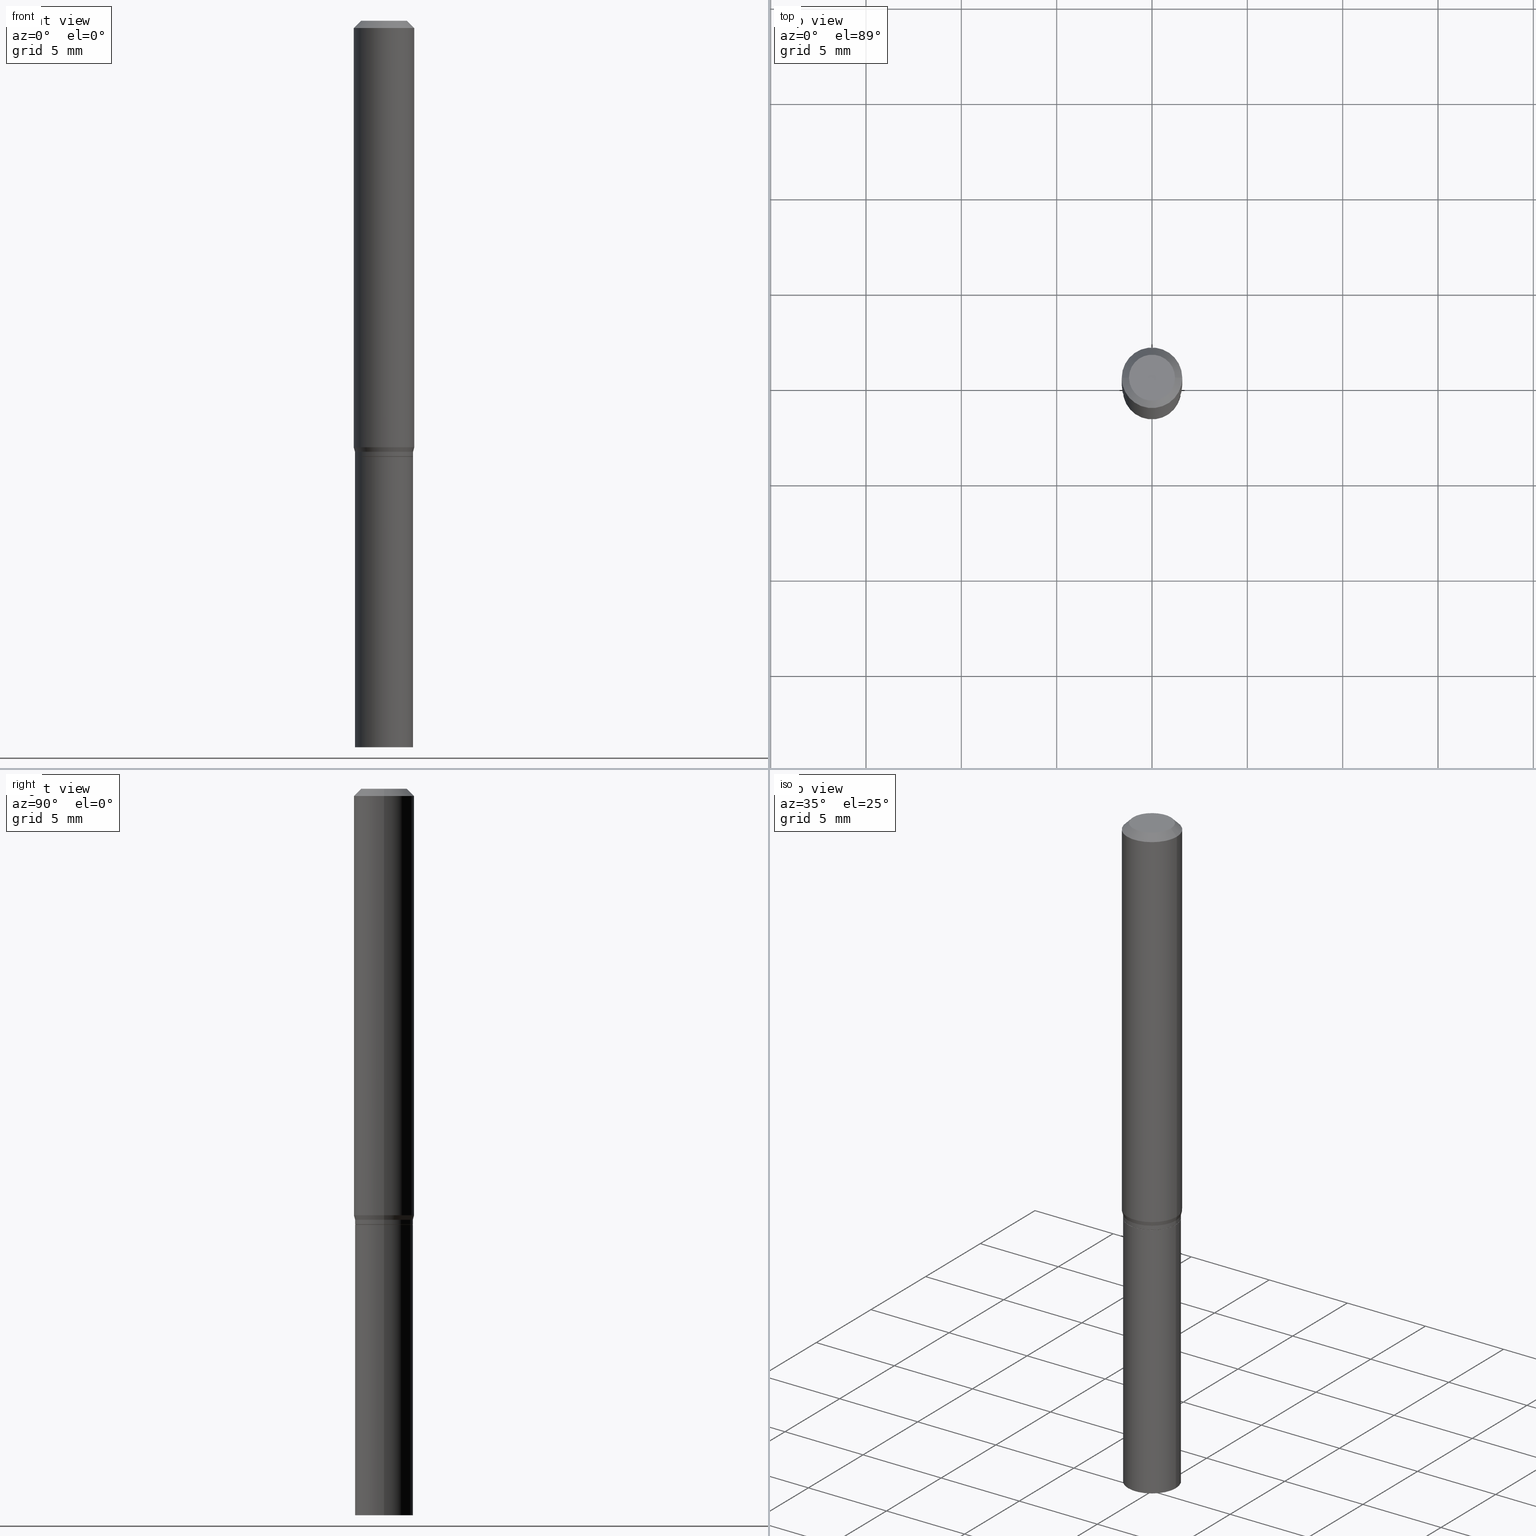
[diagram: canonical four-view strip — front | top / right | iso, engineering-drawing reading convention]
A machine part, canonical four-view strip (front | top / right | iso — engineering-drawing reading convention). The complete STEP part file that produces these views, byte-faithful:
ISO-10303-21;
HEADER;
FILE_DESCRIPTION (( 'STEP AP203' ),
    '1' );
FILE_NAME ('04209.STEP',
    '2024-03-14T17:19:39',
    ( '' ),
    ( '' ),
    'SwSTEP 2.0',
    'SolidWorks 2023',
    '' );
FILE_SCHEMA (( 'CONFIG_CONTROL_DESIGN' ));
ENDSEC;

DATA;
#1 = VECTOR ( 'NONE', #53, 39.37007874015748143 ) ;
#2 = FACE_OUTER_BOUND ( 'NONE', #115, .T. ) ;
#3 = ORIENTED_EDGE ( 'NONE', *, *, #406, .F. ) ;
#4 = DIRECTION ( 'NONE',  ( -2.445468806185136597E-29, 3.491481338843145583E-15, 1.000000000000000000 ) ) ;
#5 = VERTEX_POINT ( 'NONE', #450 ) ;
#6 = EDGE_CURVE ( 'NONE', #359, #5, #65, .T. ) ;
#7 = COORDINATED_UNIVERSAL_TIME_OFFSET ( 5, 0, .BEHIND. ) ;
#8 = ORIENTED_EDGE ( 'NONE', *, *, #388, .T. ) ;
#9 = APPLICATION_CONTEXT ( 'configuration controlled 3d designs of mechanical parts and assemblies' ) ;
#10 = PERSON_AND_ORGANIZATION ( #160, #280 ) ;
#11 = AXIS2_PLACEMENT_3D ( 'NONE', #188, #299, #198 ) ;
#12 = DIRECTION ( 'NONE',  ( 1.000000000000000000, -6.982962677686268288E-15, 0.000000000000000000 ) ) ;
#13 = DATE_TIME_ROLE ( 'classification_date' ) ;
#14 = DIRECTION ( 'NONE',  ( 1.000000000000000000, -6.982962677686270655E-15, 0.000000000000000000 ) ) ;
#15 = ADVANCED_FACE ( 'NONE', ( #92 ), #16, .F. ) ;
#16 = PLANE ( 'NONE',  #410 ) ;
#17 = PERSON_AND_ORGANIZATION_ROLE ( 'design_owner' ) ;
#18 = CONICAL_SURFACE ( 'NONE', #219, 0.06250000000000000000, 0.7853981633974549403 ) ;
#19 = VERTEX_POINT ( 'NONE', #88 ) ;
#20 = AXIS2_PLACEMENT_3D ( 'NONE', #245, #282, #210 ) ;
#21 = VERTEX_POINT ( 'NONE', #337 ) ;
#22 = EDGE_CURVE ( 'NONE', #263, #113, #366, .T. ) ;
#23 = DIRECTION ( 'NONE',  ( -2.445468806185136597E-29, 3.491481338843145583E-15, 1.000000000000000000 ) ) ;
#24 = DIRECTION ( 'NONE',  ( 1.000000000000000000, -6.982962677686269077E-15, 0.000000000000000000 ) ) ;
#25 = VECTOR ( 'NONE', #125, 39.37007874015748143 ) ;
#26 = AXIS2_PLACEMENT_3D ( 'NONE', #184, #134, #81 ) ;
#27 = CYLINDRICAL_SURFACE ( 'NONE', #56, 0.06000000000000012962 ) ;
#28 = ADVANCED_FACE ( 'NONE', ( #374 ), #196, .F. ) ;
#29 = ORIENTED_EDGE ( 'NONE', *, *, #77, .F. ) ;
#30 = DIRECTION ( 'NONE',  ( 2.438088387897960049E-29, -3.491481338843145188E-15, -1.000000000000000000 ) ) ;
#31 = CARTESIAN_POINT ( 'NONE',  ( -0.06250000000000000000, -2.630753217344736608E-15, -0.8806698729810786830 ) ) ;
#32 = CC_DESIGN_APPROVAL ( #412, ( #301 ) ) ;
#33 = LINE ( 'NONE', #286, #315 ) ;
#34 = ORIENTED_EDGE ( 'NONE', *, *, #304, .F. ) ;
#35 = UNCERTAINTY_MEASURE_WITH_UNIT (LENGTH_MEASURE( 1.000000000000000082E-05 ), #396, 'distance_accuracy_value', 'NONE');
#36 = ORIENTED_EDGE ( 'NONE', *, *, #406, .T. ) ;
#37 = DIRECTION ( 'NONE',  ( 1.000000000000000000, -6.982962677686268288E-15, 0.000000000000000000 ) ) ;
#38 = EDGE_LOOP ( 'NONE', ( #106, #73, #321, #179 ) ) ;
#39 = CONICAL_SURFACE ( 'NONE', #247, 0.06000000000000019901, 0.2617993877991505181 ) ;
#40 = APPROVAL_PERSON_ORGANIZATION ( #155, #258, #328 ) ;
#41 = DIRECTION ( 'NONE',  ( -2.445468806185136597E-29, 3.491481338843145583E-15, 1.000000000000000000 ) ) ;
#42 = EDGE_LOOP ( 'NONE', ( #214, #211, #222, #68 ) ) ;
#43 = ADVANCED_FACE ( 'NONE', ( #372 ), #39, .T. ) ;
#44 = CARTESIAN_POINT ( 'NONE',  ( 2.200921925566623666E-29, -3.142333204958831853E-15, -0.9000000000000002442 ) ) ;
#45 = ORIENTED_EDGE ( 'NONE', *, *, #168, .T. ) ;
#46 = COORDINATED_UNIVERSAL_TIME_OFFSET ( 5, 0, .BEHIND. ) ;
#47 = CARTESIAN_POINT ( 'NONE',  ( 0.06250000000000000000, -4.364351673553916694E-16, 3.047610484872459871E-30 ) ) ;
#48 = DIRECTION ( 'NONE',  ( 0.000000000000000000, 0.000000000000000000, 1.000000000000000000 ) ) ;
#49 = CIRCLE ( 'NONE', #269, 0.05949999999999999734 ) ;
#50 = ORIENTED_EDGE ( 'NONE', *, *, #277, .T. ) ;
#51 = PRODUCT_DEFINITION ( 'UNKNOWN', '', #140, #391 ) ;
#52 = APPROVAL_ROLE ( '' ) ;
#53 = DIRECTION ( 'NONE',  ( -0.2588190451025217942, 5.211531920934552619E-15, 0.9659258262890679791 ) ) ;
#54 = CARTESIAN_POINT ( 'NONE',  ( 2.153650702922254231E-29, -3.074842427194799224E-15, -0.8806698729810786830 ) ) ;
#55 = PERSON_AND_ORGANIZATION ( #160, #280 ) ;
#56 = AXIS2_PLACEMENT_3D ( 'NONE', #244, #421, #202 ) ;
#57 = DIRECTION ( 'NONE',  ( 2.438088387897960049E-29, -3.491481338843145188E-15, -1.000000000000000000 ) ) ;
#58 = AXIS2_PLACEMENT_3D ( 'NONE', #203, #452, #127 ) ;
#59 = EDGE_CURVE ( 'NONE', #263, #19, #235, .T. ) ;
#60 = DIRECTION ( 'NONE',  ( -2.445468806185136597E-29, 3.491481338843145583E-15, 1.000000000000000000 ) ) ;
#61 = LINE ( 'NONE', #422, #411 ) ;
#62 = CC_DESIGN_PERSON_AND_ORGANIZATION_ASSIGNMENT ( #271, #416, ( #140 ) ) ;
#63 = EDGE_CURVE ( 'NONE', #19, #266, #193, .T. ) ;
#64 = DIRECTION ( 'NONE',  ( -2.445468806185136597E-29, 3.491481338843145583E-15, 1.000000000000000000 ) ) ;
#65 = CIRCLE ( 'NONE', #384, 0.05999999999999999778 ) ;
#66 = VECTOR ( 'NONE', #114, 39.37007874015748143 ) ;
#67 = CARTESIAN_POINT ( 'NONE',  ( 3.668203209277705088E-31, -5.237222008264718399E-17, -0.01499999999999999944 ) ) ;
#68 = ORIENTED_EDGE ( 'NONE', *, *, #388, .F. ) ;
#69 = CARTESIAN_POINT ( 'NONE',  ( 0.000000000000000000, 0.000000000000000000, 0.000000000000000000 ) ) ;
#70 = CARTESIAN_POINT ( 'NONE',  ( -0.06000000000000006023, -2.714261822833349464E-15, -0.8995000000000001883 ) ) ;
#71 = ORIENTED_EDGE ( 'NONE', *, *, #351, .F. ) ;
#72 = CONICAL_SURFACE ( 'NONE', #300, 0.06250000000000000000, 0.7853981633974549403 ) ;
#73 = ORIENTED_EDGE ( 'NONE', *, *, #22, .T. ) ;
#74 = CARTESIAN_POINT ( 'NONE',  ( 2.176467237504771560E-29, -3.107418391570399809E-15, -0.8900000000000000133 ) ) ;
#75 = ORIENTED_EDGE ( 'NONE', *, *, #104, .F. ) ;
#76 = LINE ( 'NONE', #172, #101 ) ;
#77 = EDGE_CURVE ( 'NONE', #145, #365, #180, .T. ) ;
#78 = ORIENTED_EDGE ( 'NONE', *, *, #358, .F. ) ;
#79 = VECTOR ( 'NONE', #408, 39.37007874015748143 ) ;
#80 = LOCAL_TIME ( 13, 19, 39.00000000000000000, #83 ) ;
#81 = DIRECTION ( 'NONE',  ( 1.000000000000000000, -6.982962677686268288E-15, 0.000000000000000000 ) ) ;
#82 = EDGE_LOOP ( 'NONE', ( #3, #166 ) ) ;
#83 = COORDINATED_UNIVERSAL_TIME_OFFSET ( 5, 0, .BEHIND. ) ;
#84 = LINE ( 'NONE', #90, #1 ) ;
#85 = APPROVAL_DATE_TIME ( #265, #457 ) ;
#86 = CARTESIAN_POINT ( 'NONE',  ( -0.06250000000000000000, -1.119518113788660733E-15, -0.01499999999999999944 ) ) ;
#87 = AXIS2_PLACEMENT_3D ( 'NONE', #227, #151, #297 ) ;
#88 = CARTESIAN_POINT ( 'NONE',  ( 0.06250000000000000000, -3.511277594550191288E-15, -0.8806698729810786830 ) ) ;
#89 = PERSON_AND_ORGANIZATION ( #160, #280 ) ;
#90 = CARTESIAN_POINT ( 'NONE',  ( -0.06000000000000019901, -2.681092750114338136E-15, -0.8900000000000000133 ) ) ;
#91 = SECURITY_CLASSIFICATION_LEVEL ( 'unclassified' ) ;
#92 = FACE_OUTER_BOUND ( 'NONE', #142, .T. ) ;
#93 = EDGE_CURVE ( 'NONE', #359, #21, #377, .T. ) ;
#94 = CLOSED_SHELL ( 'NONE', ( #340, #413, #325, #15 ) ) ;
#95 = LINE ( 'NONE', #316, #242 ) ;
#96 = DIRECTION ( 'NONE',  ( -2.445468806185136597E-29, 3.491481338843145583E-15, 1.000000000000000000 ) ) ;
#97 = CC_DESIGN_DATE_AND_TIME_ASSIGNMENT ( #116, #13, ( #301 ) ) ;
#98 = EDGE_CURVE ( 'NONE', #19, #263, #453, .T. ) ;
#99 = DIRECTION ( 'NONE',  ( 0.7071067811865656694, -2.468850131082446387E-15, 0.7071067811865294761 ) ) ;
#100 = CARTESIAN_POINT ( 'NONE',  ( 0.06000000000000012962, -4.189777606611768802E-16, 2.925706065477567711E-30 ) ) ;
#101 = VECTOR ( 'NONE', #318, 39.37007874015748143 ) ;
#102 = DIRECTION ( 'NONE',  ( -2.445468806185136877E-29, 3.491481338843145188E-15, 1.000000000000000000 ) ) ;
#103 = PLANE ( 'NONE',  #20 ) ;
#104 = EDGE_CURVE ( 'NONE', #218, #263, #84, .T. ) ;
#105 = DIRECTION ( 'NONE',  ( 1.000000000000000000, -6.982962677686268288E-15, 0.000000000000000000 ) ) ;
#106 = ORIENTED_EDGE ( 'NONE', *, *, #98, .T. ) ;
#107 = CONICAL_SURFACE ( 'NONE', #87, 0.05949999999999999734, 0.7853981633974739252 ) ;
#108 = CARTESIAN_POINT ( 'NONE',  ( 3.668203209277704895E-29, -5.237222008264718177E-15, -1.500000000000000222 ) ) ;
#109 = VERTEX_POINT ( 'NONE', #305 ) ;
#110 = ADVANCED_FACE ( 'NONE', ( #451 ), #18, .T. ) ;
#111 = DIRECTION ( 'NONE',  ( -2.445468806185136597E-29, 3.491481338843145583E-15, 1.000000000000000000 ) ) ;
#112 = CC_DESIGN_DATE_AND_TIME_ASSIGNMENT ( #446, #442, ( #51 ) ) ;
#113 = VERTEX_POINT ( 'NONE', #86 ) ;
#114 = DIRECTION ( 'NONE',  ( 0.7071067811865522357, -7.319954787623271823E-15, -0.7071067811865427988 ) ) ;
#115 = EDGE_LOOP ( 'NONE', ( #36, #118, #294, #403 ) ) ;
#116 = DATE_AND_TIME ( #291, #249 ) ;
#117 = ORIENTED_EDGE ( 'NONE', *, *, #439, .F. ) ;
#118 = ORIENTED_EDGE ( 'NONE', *, *, #93, .T. ) ;
#119 = COORDINATED_UNIVERSAL_TIME_OFFSET ( 5, 0, .BEHIND. ) ;
#120 = DIRECTION ( 'NONE',  ( 1.000000000000000000, -6.982962677686270655E-15, 0.000000000000000000 ) ) ;
#121 = CYLINDRICAL_SURFACE ( 'NONE', #461, 0.06000000000000012962 ) ;
#122 = CC_DESIGN_APPROVAL ( #258, ( #51 ) ) ;
#123 = CARTESIAN_POINT ( 'NONE',  ( 3.668203209277704895E-29, -5.237222008264718177E-15, -1.500000000000000222 ) ) ;
#124 = ADVANCED_FACE ( 'NONE', ( #268 ), #107, .T. ) ;
#125 = DIRECTION ( 'NONE',  ( -2.445468806185136877E-29, 3.491481338843145188E-15, 1.000000000000000000 ) ) ;
#126 = DIRECTION ( 'NONE',  ( 1.000000000000000000, -6.982962677686269077E-15, 0.000000000000000000 ) ) ;
#127 = DIRECTION ( 'NONE',  ( 1.000000000000000000, -6.982962677686269077E-15, 0.000000000000000000 ) ) ;
#128 = VECTOR ( 'NONE', #254, 39.37007874015748143 ) ;
#129 = FACE_OUTER_BOUND ( 'NONE', #38, .T. ) ;
#130 = CARTESIAN_POINT ( 'NONE',  ( 3.668203209277705088E-31, -5.237222008264718399E-17, -0.01499999999999999944 ) ) ;
#131 = FACE_OUTER_BOUND ( 'NONE', #290, .T. ) ;
#132 = AXIS2_PLACEMENT_3D ( 'NONE', #237, #426, #24 ) ;
#133 = CC_DESIGN_PERSON_AND_ORGANIZATION_ASSIGNMENT ( #89, #17, ( #295 ) ) ;
#134 = DIRECTION ( 'NONE',  ( -2.445468806185136597E-29, 3.491481338843145583E-15, 1.000000000000000000 ) ) ;
#135 = CARTESIAN_POINT ( 'NONE',  ( -0.05999999999999999778, -3.763451965155715313E-15, -1.500000000000000222 ) ) ;
#136 = EDGE_LOOP ( 'NONE', ( #138, #443, #327, #137 ) ) ;
#137 = ORIENTED_EDGE ( 'NONE', *, *, #176, .F. ) ;
#138 = ORIENTED_EDGE ( 'NONE', *, *, #317, .F. ) ;
#139 = ADVANCED_FACE ( 'NONE', ( #444 ), #121, .T. ) ;
#140 = PRODUCT_DEFINITION_FORMATION_WITH_SPECIFIED_SOURCE ( 'ANY', '', #295, .NOT_KNOWN. ) ;
#141 = DIRECTION ( 'NONE',  ( -2.445468806185136597E-29, 3.491481338843145583E-15, 1.000000000000000000 ) ) ;
#142 = EDGE_LOOP ( 'NONE', ( #284, #173 ) ) ;
#143 = DIRECTION ( 'NONE',  ( 1.000000000000000000, -6.982962677686268288E-15, 0.000000000000000000 ) ) ;
#144 = EDGE_LOOP ( 'NONE', ( #329, #147, #45, #34 ) ) ;
#145 = VERTEX_POINT ( 'NONE', #348 ) ;
#146 = PERSON_AND_ORGANIZATION_ROLE ( 'classification_officer' ) ;
#147 = ORIENTED_EDGE ( 'NONE', *, *, #6, .T. ) ;
#148 = AXIS2_PLACEMENT_3D ( 'NONE', #157, #335, #447 ) ;
#149 = APPROVAL_ROLE ( '' ) ;
#150 = DIRECTION ( 'NONE',  ( -1.000000000000000000, 6.982962677686266711E-15, 0.000000000000000000 ) ) ;
#151 = DIRECTION ( 'NONE',  ( -2.445468806185136597E-29, 3.491481338843145583E-15, 1.000000000000000000 ) ) ;
#152 = APPLICATION_PROTOCOL_DEFINITION ( 'international standard', 'config_control_design', 1994, #9 ) ;
#153 = DIRECTION ( 'NONE',  ( -2.445468806185136597E-29, 3.491481338843145583E-15, 1.000000000000000000 ) ) ;
#154 = ADVANCED_FACE ( 'NONE', ( #243 ), #72, .T. ) ;
#155 = PERSON_AND_ORGANIZATION ( #160, #280 ) ;
#156 = CIRCLE ( 'NONE', #26, 0.05999999999999999778 ) ;
#157 = CARTESIAN_POINT ( 'NONE',  ( 2.199699191163530864E-29, -3.140587464289409955E-15, -0.8995000000000001883 ) ) ;
#158 = ORIENTED_EDGE ( 'NONE', *, *, #228, .T. ) ;
#159 = CARTESIAN_POINT ( 'NONE',  ( 2.153650702922254231E-29, -3.074842427194799224E-15, -0.8806698729810786830 ) ) ;
#160 = PERSON ( 'UNSPECIFIED', 'UNSPECIFIED', 'UNSPECIFIED', ('UNSPECIFIED'), ('UNSPECIFIED'), ('UNSPECIFIED') ) ;
#161 = CARTESIAN_POINT ( 'NONE',  ( 2.176467237504771560E-29, -3.107418391570399809E-15, -0.8900000000000000133 ) ) ;
#162 = DIRECTION ( 'NONE',  ( -2.445468806185136597E-29, 3.491481338843145583E-15, 1.000000000000000000 ) ) ;
#163 = MANIFOLD_SOLID_BREP ( 'Body-Move/Copy2[1]', #94 ) ;
#164 = MANIFOLD_SOLID_BREP ( 'Body-Move/Copy2[2]', #199 ) ;
#165 = DIRECTION ( 'NONE',  ( -2.445468806185136597E-29, 3.491481338843145583E-15, 1.000000000000000000 ) ) ;
#166 = ORIENTED_EDGE ( 'NONE', *, *, #6, .F. ) ;
#167 = DIRECTION ( 'NONE',  ( 1.000000000000000000, -6.982962677686266711E-15, 0.000000000000000000 ) ) ;
#168 = EDGE_CURVE ( 'NONE', #5, #332, #95, .T. ) ;
#169 = DIRECTION ( 'NONE',  ( -2.445468806185136877E-29, 3.491481338843145188E-15, 1.000000000000000000 ) ) ;
#170 = CIRCLE ( 'NONE', #274, 0.06250000000000000000 ) ;
#171 =( GEOMETRIC_REPRESENTATION_CONTEXT ( 3 ) GLOBAL_UNCERTAINTY_ASSIGNED_CONTEXT ( ( #35 ) ) GLOBAL_UNIT_ASSIGNED_CONTEXT ( ( #396, #261, #336 ) ) REPRESENTATION_CONTEXT ( 'NONE', 'WORKASPACE' ) );
#172 = CARTESIAN_POINT ( 'NONE',  ( -0.05949999999999999734, -2.719560277181572261E-15, -0.9000000000000002442 ) ) ;
#173 = ORIENTED_EDGE ( 'NONE', *, *, #304, .T. ) ;
#174 = DIRECTION ( 'NONE',  ( 1.000000000000000000, -6.982962677686266711E-15, 4.876176775795935793E-29 ) ) ;
#175 = CC_DESIGN_PERSON_AND_ORGANIZATION_ASSIGNMENT ( #376, #146, ( #301 ) ) ;
#176 = EDGE_CURVE ( 'NONE', #441, #113, #350, .T. ) ;
#177 = ORIENTED_EDGE ( 'NONE', *, *, #277, .F. ) ;
#178 = DIRECTION ( 'NONE',  ( -2.445468806185136597E-29, 3.491481338843145583E-15, 1.000000000000000000 ) ) ;
#179 = ORIENTED_EDGE ( 'NONE', *, *, #63, .F. ) ;
#180 = CIRCLE ( 'NONE', #148, 0.06000000000000006023 ) ;
#181 = AXIS2_PLACEMENT_3D ( 'NONE', #74, #436, #364 ) ;
#182 = DIRECTION ( 'NONE',  ( 1.000000000000000000, -6.982962677686267499E-15, 4.876176775795936353E-29 ) ) ;
#183 = ORIENTED_EDGE ( 'NONE', *, *, #208, .F. ) ;
#184 = CARTESIAN_POINT ( 'NONE',  ( 2.200921925566623666E-29, -3.142333204958831853E-15, -0.9000000000000002442 ) ) ;
#185 = ORIENTED_EDGE ( 'NONE', *, *, #186, .F. ) ;
#186 = EDGE_CURVE ( 'NONE', #365, #145, #438, .T. ) ;
#187 = PERSON_AND_ORGANIZATION ( #160, #280 ) ;
#188 = CARTESIAN_POINT ( 'NONE',  ( 2.200921925566623666E-29, -3.142333204958831853E-15, -0.9000000000000002442 ) ) ;
#189 = ORIENTED_EDGE ( 'NONE', *, *, #255, .T. ) ;
#190 = AXIS2_PLACEMENT_3D ( 'NONE', #69, #23, #460 ) ;
#191 = APPROVAL_PERSON_ORGANIZATION ( #55, #457, #52 ) ;
#192 = SHAPE_DEFINITION_REPRESENTATION ( #330, #240 ) ;
#193 = LINE ( 'NONE', #47, #79 ) ;
#194 = PERSON_AND_ORGANIZATION_ROLE ( 'creator' ) ;
#195 = PRODUCT_RELATED_PRODUCT_CATEGORY ( 'detail', '', ( #295 ) ) ;
#196 = PLANE ( 'NONE',  #11 ) ;
#197 = EDGE_CURVE ( 'NONE', #266, #113, #430, .T. ) ;
#198 = DIRECTION ( 'NONE',  ( 1.000000000000000000, -6.982962677686265922E-15, 4.876176775795935793E-29 ) ) ;
#199 = CLOSED_SHELL ( 'NONE', ( #139, #124, #110, #267, #288, #43, #425, #154, #241, #28, #458, #223 ) ) ;
#200 = AXIS2_PLACEMENT_3D ( 'NONE', #221, #141, #182 ) ;
#201 = CARTESIAN_POINT ( 'NONE',  ( -0.06250000000000000000, 4.440892098500626162E-16, -3.074334431409316114E-30 ) ) ;
#202 = DIRECTION ( 'NONE',  ( 1.000000000000000000, -6.982962677686265922E-15, 4.876176775795935793E-29 ) ) ;
#203 = CARTESIAN_POINT ( 'NONE',  ( 2.176467237504771560E-29, -3.107418391570399809E-15, -0.8900000000000000133 ) ) ;
#204 = AXIS2_PLACEMENT_3D ( 'NONE', #159, #417, #14 ) ;
#205 = DIRECTION ( 'NONE',  ( 1.000000000000000000, -6.982962677686267499E-15, 4.852736867747366768E-29 ) ) ;
#206 = CIRCLE ( 'NONE', #181, 0.06000000000000019901 ) ;
#207 = CARTESIAN_POINT ( 'NONE',  ( 4.865611903635008365E-45, -6.946804277620623666E-31, -1.989643822619527736E-16 ) ) ;
#208 = EDGE_CURVE ( 'NONE', #145, #264, #383, .T. ) ;
#209 = DIRECTION ( 'NONE',  ( -2.445468806185136597E-29, 3.491481338843145583E-15, 1.000000000000000000 ) ) ;
#210 = DIRECTION ( 'NONE',  ( 1.000000000000000000, -6.982962677686265922E-15, 4.876176775795935793E-29 ) ) ;
#211 = ORIENTED_EDGE ( 'NONE', *, *, #104, .T. ) ;
#212 = FACE_OUTER_BOUND ( 'NONE', #256, .T. ) ;
#213 = ORIENTED_EDGE ( 'NONE', *, *, #63, .T. ) ;
#214 = ORIENTED_EDGE ( 'NONE', *, *, #351, .T. ) ;
#215 = CARTESIAN_POINT ( 'NONE',  ( 0.06000000000000019901, -3.526396152231577232E-15, -0.8900000000000000133 ) ) ;
#216 = EDGE_LOOP ( 'NONE', ( #158, #437 ) ) ;
#217 = DIRECTION ( 'NONE',  ( 1.000000000000000000, -6.982962677686267499E-15, 4.876176775795936353E-29 ) ) ;
#218 = VERTEX_POINT ( 'NONE', #276 ) ;
#219 = AXIS2_PLACEMENT_3D ( 'NONE', #262, #405, #150 ) ;
#220 = CC_DESIGN_SECURITY_CLASSIFICATION ( #301, ( #140 ) ) ;
#221 = CARTESIAN_POINT ( 'NONE',  ( 0.000000000000000000, 0.000000000000000000, 0.000000000000000000 ) ) ;
#222 = ORIENTED_EDGE ( 'NONE', *, *, #98, .F. ) ;
#223 = ADVANCED_FACE ( 'NONE', ( #131 ), #27, .T. ) ;
#224 = APPLICATION_PROTOCOL_DEFINITION ( 'international standard', 'config_control_design', 1994, #293 ) ;
#225 = CARTESIAN_POINT ( 'NONE',  ( 4.189777606611979823E-16, 0.05999999999999686140, -0.9000000000000004663 ) ) ;
#226 = APPROVAL_DATE_TIME ( #334, #412 ) ;
#227 = CARTESIAN_POINT ( 'NONE',  ( 2.200921925566623666E-29, -3.142333204958831853E-15, -0.9000000000000002442 ) ) ;
#228 = EDGE_CURVE ( 'NONE', #441, #109, #314, .T. ) ;
#229 = PERSON_AND_ORGANIZATION ( #160, #280 ) ;
#230 = DIRECTION ( 'NONE',  ( -2.445468806185136597E-29, 3.491481338843145583E-15, 1.000000000000000000 ) ) ;
#231 = CALENDAR_DATE ( 2024, 14, 3 ) ;
#232 = CARTESIAN_POINT ( 'NONE',  ( 2.176467237504771560E-29, -3.107418391570399809E-15, -0.8900000000000000133 ) ) ;
#233 = PERSON_AND_ORGANIZATION_ROLE ( 'design_supplier' ) ;
#234 = DIRECTION ( 'NONE',  ( 1.000000000000000000, -6.982962677686269077E-15, 0.000000000000000000 ) ) ;
#235 = CIRCLE ( 'NONE', #352, 0.06250000000000000000 ) ;
#236 = LOCAL_TIME ( 13, 19, 39.00000000000000000, #119 ) ;
#237 = CARTESIAN_POINT ( 'NONE',  ( 2.199699191163530864E-29, -3.140587464289409955E-15, -0.8995000000000001883 ) ) ;
#238 = DIRECTION ( 'NONE',  ( -0.7071067811865522357, 2.468850131082306364E-15, -0.7071067811865427988 ) ) ;
#239 = CARTESIAN_POINT ( 'NONE',  ( 4.865611903635008365E-45, -6.946804277620623666E-31, -1.989643822619527736E-16 ) ) ;
#240 = ADVANCED_BREP_SHAPE_REPRESENTATION ( '04209', ( #163, #164, #440 ), #171 ) ;
#241 = ADVANCED_FACE ( 'NONE', ( #343 ), #278, .F. ) ;
#242 = VECTOR ( 'NONE', #102, 39.37007874015748143 ) ;
#243 = FACE_OUTER_BOUND ( 'NONE', #260, .T. ) ;
#244 = CARTESIAN_POINT ( 'NONE',  ( 0.000000000000000000, 0.000000000000000000, 0.000000000000000000 ) ) ;
#245 = CARTESIAN_POINT ( 'NONE',  ( 3.576687321579069994E-29, -5.368277968210015545E-15, -1.500000000000000222 ) ) ;
#246 = DIRECTION ( 'NONE',  ( 1.000000000000000000, -6.982962677686268288E-15, 0.000000000000000000 ) ) ;
#247 = AXIS2_PLACEMENT_3D ( 'NONE', #232, #153, #234 ) ;
#248 = ORIENTED_EDGE ( 'NONE', *, *, #395, .F. ) ;
#249 = LOCAL_TIME ( 13, 19, 39.00000000000000000, #331 ) ;
#250 = DIRECTION ( 'NONE',  ( -2.445468806185136597E-29, 3.491481338843145583E-15, 1.000000000000000000 ) ) ;
#251 = ORIENTED_EDGE ( 'NONE', *, *, #59, .T. ) ;
#252 = LINE ( 'NONE', #215, #128 ) ;
#253 = EDGE_LOOP ( 'NONE', ( #435, #292, #71, #183 ) ) ;
#254 = DIRECTION ( 'NONE',  ( 0.2588190451025217942, 1.565188264969618812E-15, 0.9659258262890679791 ) ) ;
#255 = EDGE_CURVE ( 'NONE', #113, #266, #170, .T. ) ;
#256 = EDGE_LOOP ( 'NONE', ( #283, #251, #213, #459 ) ) ;
#257 = AXIS2_PLACEMENT_3D ( 'NONE', #130, #60, #310 ) ;
#258 = APPROVAL ( #404, 'UNSPECIFIED' ) ;
#259 = CIRCLE ( 'NONE', #448, 0.04749999999999999362 ) ;
#260 = EDGE_LOOP ( 'NONE', ( #78, #429, #323, #189 ) ) ;
#261 =( NAMED_UNIT ( * ) PLANE_ANGLE_UNIT ( ) SI_UNIT ( $, .RADIAN. ) );
#262 = CARTESIAN_POINT ( 'NONE',  ( 3.668203209277705088E-31, -5.237222008264718399E-17, -0.01499999999999999944 ) ) ;
#263 = VERTEX_POINT ( 'NONE', #31 ) ;
#264 = VERTEX_POINT ( 'NONE', #455 ) ;
#265 = DATE_AND_TIME ( #449, #370 ) ;
#266 = VERTEX_POINT ( 'NONE', #313 ) ;
#267 = ADVANCED_FACE ( 'NONE', ( #129 ), #279, .T. ) ;
#268 = FACE_OUTER_BOUND ( 'NONE', #319, .T. ) ;
#269 = AXIS2_PLACEMENT_3D ( 'NONE', #44, #111, #246 ) ;
#270 = DIRECTION ( 'NONE',  ( -1.000000000000000000, 6.982962677686265922E-15, -4.876176775795935793E-29 ) ) ;
#271 = PERSON_AND_ORGANIZATION ( #160, #280 ) ;
#272 = DIRECTION ( 'NONE',  ( -2.445468806185136877E-29, 3.491481338843145188E-15, 1.000000000000000000 ) ) ;
#273 = CARTESIAN_POINT ( 'NONE',  ( -0.05949999999999999734, -2.716911050007460666E-15, -0.9000000000000002442 ) ) ;
#274 = AXIS2_PLACEMENT_3D ( 'NONE', #67, #162, #167 ) ;
#275 = CARTESIAN_POINT ( 'NONE',  ( 2.200921925566623666E-29, -3.142333204958831853E-15, -0.9000000000000002442 ) ) ;
#276 = CARTESIAN_POINT ( 'NONE',  ( -0.06000000000000019901, -2.655922983729537372E-15, -0.8900000000000000133 ) ) ;
#277 = EDGE_CURVE ( 'NONE', #218, #264, #392, .T. ) ;
#278 = PLANE ( 'NONE',  #346 ) ;
#279 = CYLINDRICAL_SURFACE ( 'NONE', #190, 0.06250000000000000000 ) ;
#280 = ORGANIZATION ( 'UNSPECIFIED', 'UNSPECIFIED', '' ) ;
#281 = FACE_OUTER_BOUND ( 'NONE', #82, .T. ) ;
#282 = DIRECTION ( 'NONE',  ( -2.438088387897960049E-29, 3.491481338843145188E-15, 1.000000000000000000 ) ) ;
#283 = ORIENTED_EDGE ( 'NONE', *, *, #22, .F. ) ;
#284 = ORIENTED_EDGE ( 'NONE', *, *, #344, .T. ) ;
#285 = CONICAL_SURFACE ( 'NONE', #385, 0.05949999999999999734, 0.7853981633974739252 ) ;
#286 = CARTESIAN_POINT ( 'NONE',  ( -0.06000000000000012962, 4.263256414560610325E-16, -2.951361054152949719E-30 ) ) ;
#287 = VERTEX_POINT ( 'NONE', #273 ) ;
#288 = ADVANCED_FACE ( 'NONE', ( #307 ), #309, .T. ) ;
#289 = CYLINDRICAL_SURFACE ( 'NONE', #341, 0.05999999999999999778 ) ;
#290 = EDGE_LOOP ( 'NONE', ( #394, #354, #390, #177 ) ) ;
#291 = CALENDAR_DATE ( 2024, 14, 3 ) ;
#292 = ORIENTED_EDGE ( 'NONE', *, *, #375, .T. ) ;
#293 = APPLICATION_CONTEXT ( 'configuration controlled 3d designs of mechanical parts and assemblies' ) ;
#294 = ORIENTED_EDGE ( 'NONE', *, *, #344, .F. ) ;
#295 = PRODUCT ( '04209', '04209', '', ( #414 ) ) ;
#296 = APPROVAL_STATUS ( 'not_yet_approved' ) ;
#297 = DIRECTION ( 'NONE',  ( 1.000000000000000000, -6.982962677686268288E-15, 0.000000000000000000 ) ) ;
#298 = APPROVAL_DATE_TIME ( #371, #258 ) ;
#299 = DIRECTION ( 'NONE',  ( -2.438088387897960049E-29, 3.491481338843145188E-15, 1.000000000000000000 ) ) ;
#300 = AXIS2_PLACEMENT_3D ( 'NONE', #456, #345, #380 ) ;
#301 = SECURITY_CLASSIFICATION ( '', '', #91 ) ;
#302 = APPROVAL_STATUS ( 'not_yet_approved' ) ;
#303 = EDGE_LOOP ( 'NONE', ( #397, #356, #402, #185 ) ) ;
#304 = EDGE_CURVE ( 'NONE', #21, #332, #333, .T. ) ;
#305 = CARTESIAN_POINT ( 'NONE',  ( 0.04749999999999999362, -4.035134999187581581E-16, -1.989643822619502098E-16 ) ) ;
#306 = DIMENSIONAL_EXPONENTS ( 1.000000000000000000, 0.000000000000000000, 0.000000000000000000, 0.000000000000000000, 0.000000000000000000, 0.000000000000000000, 0.000000000000000000 ) ;
#307 = FACE_OUTER_BOUND ( 'NONE', #42, .T. ) ;
#308 = VECTOR ( 'NONE', #169, 39.37007874015748143 ) ;
#309 = CONICAL_SURFACE ( 'NONE', #58, 0.06000000000000019901, 0.2617993877991505181 ) ;
#310 = DIRECTION ( 'NONE',  ( 1.000000000000000000, -6.982962677686266711E-15, 0.000000000000000000 ) ) ;
#311 = EDGE_CURVE ( 'NONE', #464, #145, #61, .T. ) ;
#312 = DIRECTION ( 'NONE',  ( -2.445468806185136597E-29, 3.491481338843145583E-15, 1.000000000000000000 ) ) ;
#313 = CARTESIAN_POINT ( 'NONE',  ( 0.06250000000000000000, -4.888073874380388472E-16, -0.01499999999999999944 ) ) ;
#314 = CIRCLE ( 'NONE', #378, 0.04749999999999999362 ) ;
#315 = VECTOR ( 'NONE', #326, 39.37007874015748143 ) ;
#316 = CARTESIAN_POINT ( 'NONE',  ( 0.05999999999999999778, -4.189777606611760421E-16, 2.925706065477561756E-30 ) ) ;
#317 = EDGE_CURVE ( 'NONE', #109, #441, #259, .T. ) ;
#318 = DIRECTION ( 'NONE',  ( -0.7071067811865656694, 7.493145998870420424E-15, 0.7071067811865294761 ) ) ;
#319 = EDGE_LOOP ( 'NONE', ( #362, #342, #29, #466 ) ) ;
#320 = CARTESIAN_POINT ( 'NONE',  ( 2.200921925566623666E-29, -3.142333204958831853E-15, -0.9000000000000002442 ) ) ;
#321 = ORIENTED_EDGE ( 'NONE', *, *, #197, .F. ) ;
#322 = FACE_OUTER_BOUND ( 'NONE', #144, .T. ) ;
#323 = ORIENTED_EDGE ( 'NONE', *, *, #176, .T. ) ;
#324 = AXIS2_PLACEMENT_3D ( 'NONE', #353, #250, #143 ) ;
#325 = ADVANCED_FACE ( 'NONE', ( #322 ), #289, .T. ) ;
#326 = DIRECTION ( 'NONE',  ( -2.445468806185136877E-29, 3.491481338843145188E-15, 1.000000000000000000 ) ) ;
#327 = ORIENTED_EDGE ( 'NONE', *, *, #197, .T. ) ;
#328 = APPROVAL_ROLE ( '' ) ;
#329 = ORIENTED_EDGE ( 'NONE', *, *, #93, .F. ) ;
#330 = PRODUCT_DEFINITION_SHAPE ( 'NONE', 'NONE',  #51 ) ;
#331 = COORDINATED_UNIVERSAL_TIME_OFFSET ( 5, 0, .BEHIND. ) ;
#332 = VERTEX_POINT ( 'NONE', #355 ) ;
#333 = CIRCLE ( 'NONE', #363, 0.05999999999999999778 ) ;
#334 = DATE_AND_TIME ( #407, #236 ) ;
#335 = DIRECTION ( 'NONE',  ( -2.445468806185136597E-29, 3.491481338843145583E-15, 1.000000000000000000 ) ) ;
#336 =( NAMED_UNIT ( * ) SI_UNIT ( $, .STERADIAN. ) SOLID_ANGLE_UNIT ( ) );
#337 = CARTESIAN_POINT ( 'NONE',  ( -0.05999999999999999778, -3.763451965155715313E-15, -0.9000000000000002442 ) ) ;
#338 = CARTESIAN_POINT ( 'NONE',  ( 0.000000000000000000, 0.000000000000000000, 0.000000000000000000 ) ) ;
#339 = DIRECTION ( 'NONE',  ( -2.445468806185136597E-29, 3.491481338843145583E-15, 1.000000000000000000 ) ) ;
#340 = ADVANCED_FACE ( 'NONE', ( #2 ), #389, .T. ) ;
#341 = AXIS2_PLACEMENT_3D ( 'NONE', #400, #178, #217 ) ;
#342 = ORIENTED_EDGE ( 'NONE', *, *, #445, .T. ) ;
#343 = FACE_OUTER_BOUND ( 'NONE', #216, .T. ) ;
#344 = EDGE_CURVE ( 'NONE', #332, #21, #156, .T. ) ;
#345 = DIRECTION ( 'NONE',  ( 2.445468806185136597E-29, -3.491481338843145583E-15, -1.000000000000000000 ) ) ;
#346 = AXIS2_PLACEMENT_3D ( 'NONE', #386, #30, #423 ) ;
#347 = AXIS2_PLACEMENT_3D ( 'NONE', #108, #4, #37 ) ;
#348 = CARTESIAN_POINT ( 'NONE',  ( 0.06000000000000006023, -3.559565224950586194E-15, -0.8995000000000001883 ) ) ;
#349 = DIRECTION ( 'NONE',  ( 1.000000000000000000, -6.982962677686265922E-15, 4.876176775795935793E-29 ) ) ;
#350 = LINE ( 'NONE', #418, #361 ) ;
#351 = EDGE_CURVE ( 'NONE', #264, #218, #206, .T. ) ;
#352 = AXIS2_PLACEMENT_3D ( 'NONE', #54, #339, #120 ) ;
#353 = CARTESIAN_POINT ( 'NONE',  ( 2.200921925566623666E-29, -3.142333204958831853E-15, -0.9000000000000002442 ) ) ;
#354 = ORIENTED_EDGE ( 'NONE', *, *, #186, .T. ) ;
#355 = CARTESIAN_POINT ( 'NONE',  ( 0.05999999999999999778, -3.561310965620007698E-15, -0.9000000000000002442 ) ) ;
#356 = ORIENTED_EDGE ( 'NONE', *, *, #439, .T. ) ;
#357 = CC_DESIGN_PERSON_AND_ORGANIZATION_ASSIGNMENT ( #187, #233, ( #140 ) ) ;
#358 = EDGE_CURVE ( 'NONE', #109, #266, #427, .T. ) ;
#359 = VERTEX_POINT ( 'NONE', #135 ) ;
#360 = CARTESIAN_POINT ( 'NONE',  ( -0.04749999999999999362, 3.578768372314206562E-16, -1.989643822619551895E-16 ) ) ;
#361 = VECTOR ( 'NONE', #238, 39.37007874015748143 ) ;
#362 = ORIENTED_EDGE ( 'NONE', *, *, #395, .T. ) ;
#363 = AXIS2_PLACEMENT_3D ( 'NONE', #275, #96, #382 ) ;
#364 = DIRECTION ( 'NONE',  ( 1.000000000000000000, -6.982962677686269077E-15, 0.000000000000000000 ) ) ;
#365 = VERTEX_POINT ( 'NONE', #70 ) ;
#366 = LINE ( 'NONE', #201, #25 ) ;
#367 = DIRECTION ( 'NONE',  ( 1.000000000000000000, 0.000000000000000000, 0.000000000000000000 ) ) ;
#368 = ORIENTED_EDGE ( 'NONE', *, *, #59, .F. ) ;
#369 = AXIS2_PLACEMENT_3D ( 'NONE', #161, #209, #126 ) ;
#370 = LOCAL_TIME ( 13, 19, 39.00000000000000000, #7 ) ;
#371 = DATE_AND_TIME ( #231, #80 ) ;
#372 = FACE_OUTER_BOUND ( 'NONE', #399, .T. ) ;
#373 = CALENDAR_DATE ( 2024, 14, 3 ) ;
#374 = FACE_OUTER_BOUND ( 'NONE', #433, .T. ) ;
#375 = EDGE_CURVE ( 'NONE', #365, #218, #33, .T. ) ;
#376 = PERSON_AND_ORGANIZATION ( #160, #280 ) ;
#377 = LINE ( 'NONE', #415, #419 ) ;
#378 = AXIS2_PLACEMENT_3D ( 'NONE', #207, #165, #387 ) ;
#379 = CIRCLE ( 'NONE', #347, 0.05999999999999999778 ) ;
#380 = DIRECTION ( 'NONE',  ( -1.000000000000000000, 6.982962677686266711E-15, 0.000000000000000000 ) ) ;
#381 = CC_DESIGN_PERSON_AND_ORGANIZATION_ASSIGNMENT ( #229, #194, ( #51 ) ) ;
#382 = DIRECTION ( 'NONE',  ( 1.000000000000000000, -6.982962677686268288E-15, 0.000000000000000000 ) ) ;
#383 = LINE ( 'NONE', #100, #308 ) ;
#384 = AXIS2_PLACEMENT_3D ( 'NONE', #123, #230, #12 ) ;
#385 = AXIS2_PLACEMENT_3D ( 'NONE', #320, #41, #105 ) ;
#386 = CARTESIAN_POINT ( 'NONE',  ( 3.316907271900976096E-16, 0.04749999999999999362, -2.653275547260257586E-16 ) ) ;
#387 = DIRECTION ( 'NONE',  ( 1.000000000000000000, -6.982962677686267499E-15, 4.852736867747366768E-29 ) ) ;
#388 = EDGE_CURVE ( 'NONE', #264, #19, #252, .T. ) ;
#389 = CYLINDRICAL_SURFACE ( 'NONE', #200, 0.05999999999999999778 ) ;
#390 = ORIENTED_EDGE ( 'NONE', *, *, #208, .T. ) ;
#391 = DESIGN_CONTEXT ( 'detailed design', #9, 'design' ) ;
#392 = CIRCLE ( 'NONE', #369, 0.06000000000000019901 ) ;
#393 = CARTESIAN_POINT ( 'NONE',  ( 0.05949999999999999734, -3.557819484281164690E-15, -0.9000000000000002442 ) ) ;
#394 = ORIENTED_EDGE ( 'NONE', *, *, #375, .F. ) ;
#395 = EDGE_CURVE ( 'NONE', #464, #287, #49, .T. ) ;
#396 =( CONVERSION_BASED_UNIT ( 'INCH', #432 ) LENGTH_UNIT ( ) NAMED_UNIT ( #306 ) );
#397 = ORIENTED_EDGE ( 'NONE', *, *, #445, .F. ) ;
#398 = DIRECTION ( 'NONE',  ( -2.445468806185136597E-29, 3.491481338843145583E-15, 1.000000000000000000 ) ) ;
#399 = EDGE_LOOP ( 'NONE', ( #75, #50, #8, #368 ) ) ;
#400 = CARTESIAN_POINT ( 'NONE',  ( 0.000000000000000000, 0.000000000000000000, 0.000000000000000000 ) ) ;
#401 = CC_DESIGN_APPROVAL ( #457, ( #140 ) ) ;
#402 = ORIENTED_EDGE ( 'NONE', *, *, #311, .T. ) ;
#403 = ORIENTED_EDGE ( 'NONE', *, *, #168, .F. ) ;
#404 = APPROVAL_STATUS ( 'not_yet_approved' ) ;
#405 = DIRECTION ( 'NONE',  ( 2.445468806185136597E-29, -3.491481338843145583E-15, -1.000000000000000000 ) ) ;
#406 = EDGE_CURVE ( 'NONE', #5, #359, #379, .T. ) ;
#407 = CALENDAR_DATE ( 2024, 14, 3 ) ;
#408 = DIRECTION ( 'NONE',  ( -2.445468806185136877E-29, 3.491481338843145188E-15, 1.000000000000000000 ) ) ;
#409 = CARTESIAN_POINT ( 'NONE',  ( 0.000000000000000000, 0.000000000000000000, 0.000000000000000000 ) ) ;
#410 = AXIS2_PLACEMENT_3D ( 'NONE', #225, #57, #270 ) ;
#411 = VECTOR ( 'NONE', #99, 39.37007874015748143 ) ;
#412 = APPROVAL ( #296, 'UNSPECIFIED' ) ;
#413 = ADVANCED_FACE ( 'NONE', ( #281 ), #103, .F. ) ;
#414 = MECHANICAL_CONTEXT ( 'NONE', #293, 'mechanical' ) ;
#415 = CARTESIAN_POINT ( 'NONE',  ( -0.05999999999999999778, 4.263256414560600957E-16, -2.951361054152943413E-30 ) ) ;
#416 = PERSON_AND_ORGANIZATION_ROLE ( 'creator' ) ;
#417 = DIRECTION ( 'NONE',  ( -2.445468806185136597E-29, 3.491481338843145583E-15, 1.000000000000000000 ) ) ;
#418 = CARTESIAN_POINT ( 'NONE',  ( -0.06250000000000000000, 3.840629472727444916E-16, -0.01499999999999999944 ) ) ;
#419 = VECTOR ( 'NONE', #272, 39.37007874015748143 ) ;
#420 = AXIS2_PLACEMENT_3D ( 'NONE', #434, #398, #174 ) ;
#421 = DIRECTION ( 'NONE',  ( -2.445468806185136597E-29, 3.491481338843145583E-15, 1.000000000000000000 ) ) ;
#422 = CARTESIAN_POINT ( 'NONE',  ( 0.05949999999999999734, -3.557819484281164690E-15, -0.9000000000000002442 ) ) ;
#423 = DIRECTION ( 'NONE',  ( -1.000000000000000000, 6.982962677686265922E-15, -4.876176775795935793E-29 ) ) ;
#424 = APPROVAL_PERSON_ORGANIZATION ( #10, #412, #149 ) ;
#425 = ADVANCED_FACE ( 'NONE', ( #212 ), #428, .T. ) ;
#426 = DIRECTION ( 'NONE',  ( -2.445468806185136597E-29, 3.491481338843145583E-15, 1.000000000000000000 ) ) ;
#427 = LINE ( 'NONE', #462, #66 ) ;
#428 = CYLINDRICAL_SURFACE ( 'NONE', #420, 0.06250000000000000000 ) ;
#429 = ORIENTED_EDGE ( 'NONE', *, *, #228, .F. ) ;
#430 = CIRCLE ( 'NONE', #257, 0.06250000000000000000 ) ;
#431 = LOCAL_TIME ( 13, 19, 39.00000000000000000, #46 ) ;
#432 = LENGTH_MEASURE_WITH_UNIT ( LENGTH_MEASURE( 0.02539999999999999897 ), #465 );
#433 = EDGE_LOOP ( 'NONE', ( #248, #117 ) ) ;
#434 = CARTESIAN_POINT ( 'NONE',  ( 0.000000000000000000, 0.000000000000000000, 0.000000000000000000 ) ) ;
#435 = ORIENTED_EDGE ( 'NONE', *, *, #77, .T. ) ;
#436 = DIRECTION ( 'NONE',  ( -2.445468806185136597E-29, 3.491481338843145583E-15, 1.000000000000000000 ) ) ;
#437 = ORIENTED_EDGE ( 'NONE', *, *, #317, .T. ) ;
#438 = CIRCLE ( 'NONE', #132, 0.06000000000000006023 ) ;
#439 = EDGE_CURVE ( 'NONE', #287, #464, #454, .T. ) ;
#440 = AXIS2_PLACEMENT_3D ( 'NONE', #338, #48, #367 ) ;
#441 = VERTEX_POINT ( 'NONE', #360 ) ;
#442 = DATE_TIME_ROLE ( 'creation_date' ) ;
#443 = ORIENTED_EDGE ( 'NONE', *, *, #358, .T. ) ;
#444 = FACE_OUTER_BOUND ( 'NONE', #253, .T. ) ;
#445 = EDGE_CURVE ( 'NONE', #287, #365, #76, .T. ) ;
#446 = DATE_AND_TIME ( #373, #431 ) ;
#447 = DIRECTION ( 'NONE',  ( 1.000000000000000000, -6.982962677686269077E-15, 0.000000000000000000 ) ) ;
#448 = AXIS2_PLACEMENT_3D ( 'NONE', #239, #64, #205 ) ;
#449 = CALENDAR_DATE ( 2024, 14, 3 ) ;
#450 = CARTESIAN_POINT ( 'NONE',  ( 0.05999999999999999778, -5.656199768925894810E-15, -1.500000000000000222 ) ) ;
#451 = FACE_OUTER_BOUND ( 'NONE', #136, .T. ) ;
#452 = DIRECTION ( 'NONE',  ( -2.445468806185136597E-29, 3.491481338843145583E-15, 1.000000000000000000 ) ) ;
#453 = CIRCLE ( 'NONE', #204, 0.06250000000000000000 ) ;
#454 = CIRCLE ( 'NONE', #324, 0.05949999999999999734 ) ;
#455 = CARTESIAN_POINT ( 'NONE',  ( 0.06000000000000019901, -3.526396152231577232E-15, -0.8900000000000000133 ) ) ;
#456 = CARTESIAN_POINT ( 'NONE',  ( 3.668203209277705088E-31, -5.237222008264718399E-17, -0.01499999999999999944 ) ) ;
#457 = APPROVAL ( #302, 'UNSPECIFIED' ) ;
#458 = ADVANCED_FACE ( 'NONE', ( #463 ), #285, .T. ) ;
#459 = ORIENTED_EDGE ( 'NONE', *, *, #255, .F. ) ;
#460 = DIRECTION ( 'NONE',  ( 1.000000000000000000, -6.982962677686266711E-15, 4.876176775795935793E-29 ) ) ;
#461 = AXIS2_PLACEMENT_3D ( 'NONE', #409, #312, #349 ) ;
#462 = CARTESIAN_POINT ( 'NONE',  ( 0.06250000000000000000, -4.811533449433679005E-16, -0.01499999999999999944 ) ) ;
#463 = FACE_OUTER_BOUND ( 'NONE', #303, .T. ) ;
#464 = VERTEX_POINT ( 'NONE', #393 ) ;
#465 =( LENGTH_UNIT ( ) NAMED_UNIT ( * ) SI_UNIT ( $, .METRE. ) );
#466 = ORIENTED_EDGE ( 'NONE', *, *, #311, .F. ) ;
ENDSEC;
END-ISO-10303-21;
